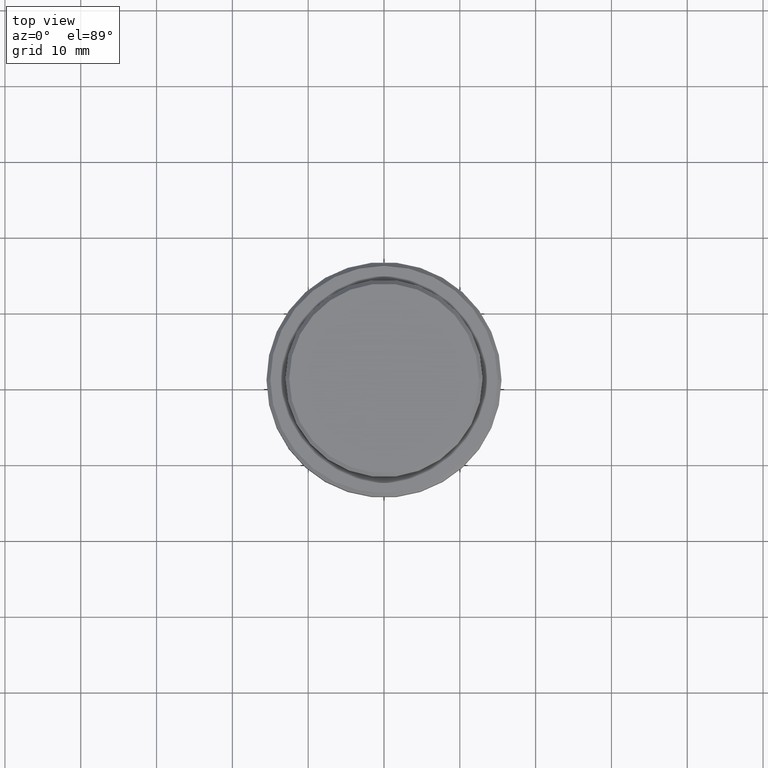
[diagram: clean part render]
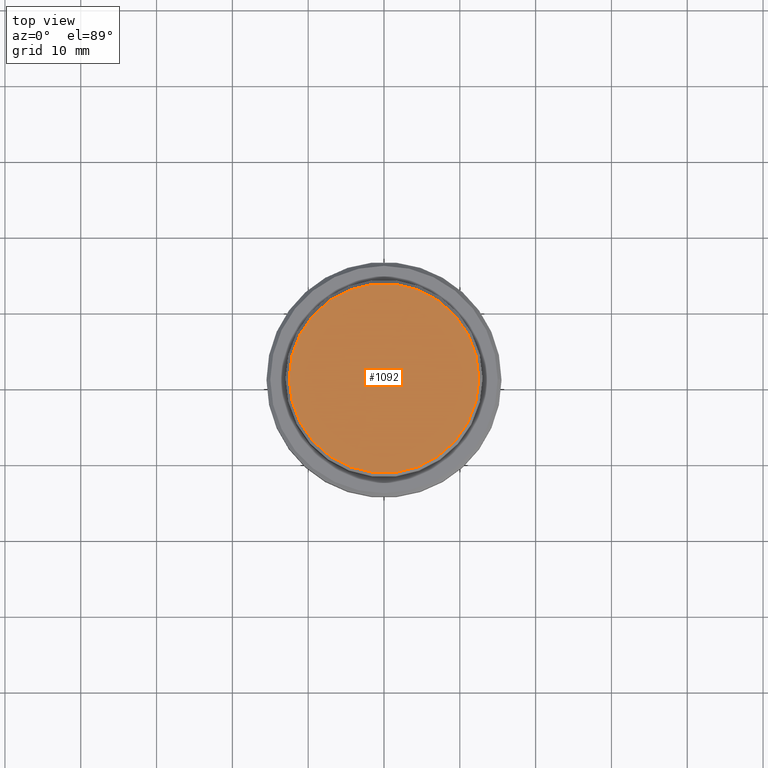
[diagram: same view with one face highlighted and labeled with its STEP entity id]
A machine part, top view. The second image highlights one B-rep face of the part: STEP entity #1092.
In plain terms, the highlighted planar face has unit normal (0, -0, 1).
Its self-contained STEP definition (entity closure, byte-faithful):
#29 = AXIS2_PLACEMENT_3D ( 'NONE', #1364, #757, #85 ) ;
#85 = DIRECTION ( 'NONE',  ( 1.000000000000000000, 0.000000000000000000, 0.000000000000000000 ) ) ;
#133 = EDGE_CURVE ( 'NONE', #789, #1213, #786, .T. ) ;
#140 = ORIENTED_EDGE ( 'NONE', *, *, #1123, .T. ) ;
#171 = AXIS2_PLACEMENT_3D ( 'NONE', #1281, #515, #871 ) ;
#199 = FACE_OUTER_BOUND ( 'NONE', #951, .T. ) ;
#210 = CARTESIAN_POINT ( 'NONE',  ( 12.49999999999999822, 1.561424668912875111E-15, 0.000000000000000000 ) ) ;
#344 = DIRECTION ( 'NONE',  ( -0.000000000000000000, -0.000000000000000000, 1.000000000000000000 ) ) ;
#515 = DIRECTION ( 'NONE',  ( 0.000000000000000000, -0.000000000000000000, 1.000000000000000000 ) ) ;
#557 = DIRECTION ( 'NONE',  ( 1.000000000000000000, 0.000000000000000000, 0.000000000000000000 ) ) ;
#559 = ORIENTED_EDGE ( 'NONE', *, *, #133, .T. ) ;
#573 = CIRCLE ( 'NONE', #29, 12.49999999999999822 ) ;
#665 = CARTESIAN_POINT ( 'NONE',  ( 0.000000000000000000, 0.000000000000000000, 0.000000000000000000 ) ) ;
#757 = DIRECTION ( 'NONE',  ( -0.000000000000000000, -0.000000000000000000, 1.000000000000000000 ) ) ;
#786 = CIRCLE ( 'NONE', #1333, 12.49999999999999822 ) ;
#789 = VERTEX_POINT ( 'NONE', #1317 ) ;
#871 = DIRECTION ( 'NONE',  ( 1.000000000000000000, 0.000000000000000000, 0.000000000000000000 ) ) ;
#951 = EDGE_LOOP ( 'NONE', ( #559, #140 ) ) ;
#1092 = ADVANCED_FACE ( 'NONE', ( #199 ), #1287, .T. ) ;
#1123 = EDGE_CURVE ( 'NONE', #1213, #789, #573, .T. ) ;
#1213 = VERTEX_POINT ( 'NONE', #210 ) ;
#1281 = CARTESIAN_POINT ( 'NONE',  ( 0.000000000000000000, 0.000000000000000000, 0.000000000000000000 ) ) ;
#1287 = PLANE ( 'NONE',  #171 ) ;
#1317 = CARTESIAN_POINT ( 'NONE',  ( -12.49999999999999822, 0.000000000000000000, 0.000000000000000000 ) ) ;
#1333 = AXIS2_PLACEMENT_3D ( 'NONE', #665, #344, #557 ) ;
#1364 = CARTESIAN_POINT ( 'NONE',  ( 0.000000000000000000, 0.000000000000000000, 0.000000000000000000 ) ) ;